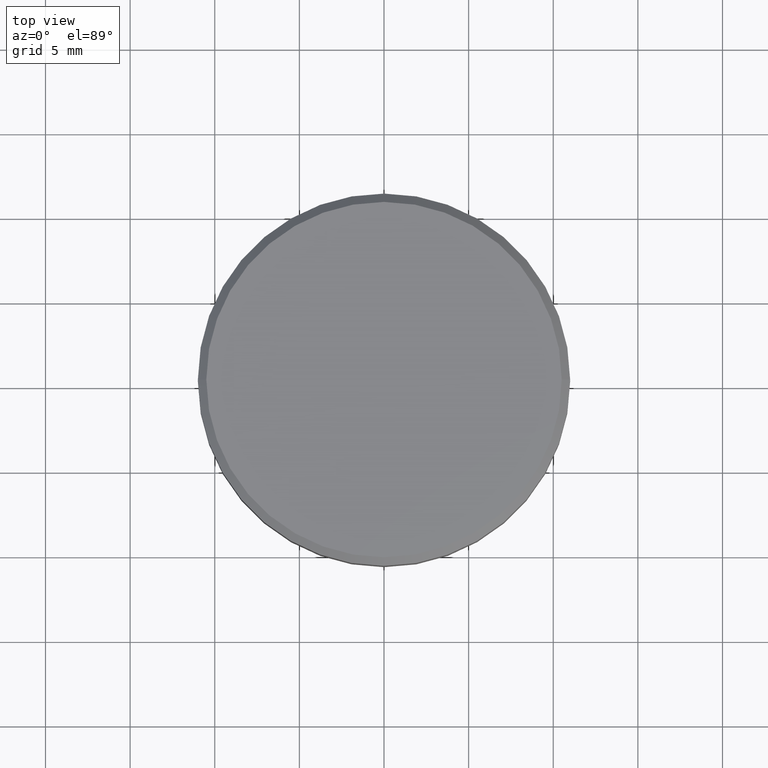
[diagram: clean part render]
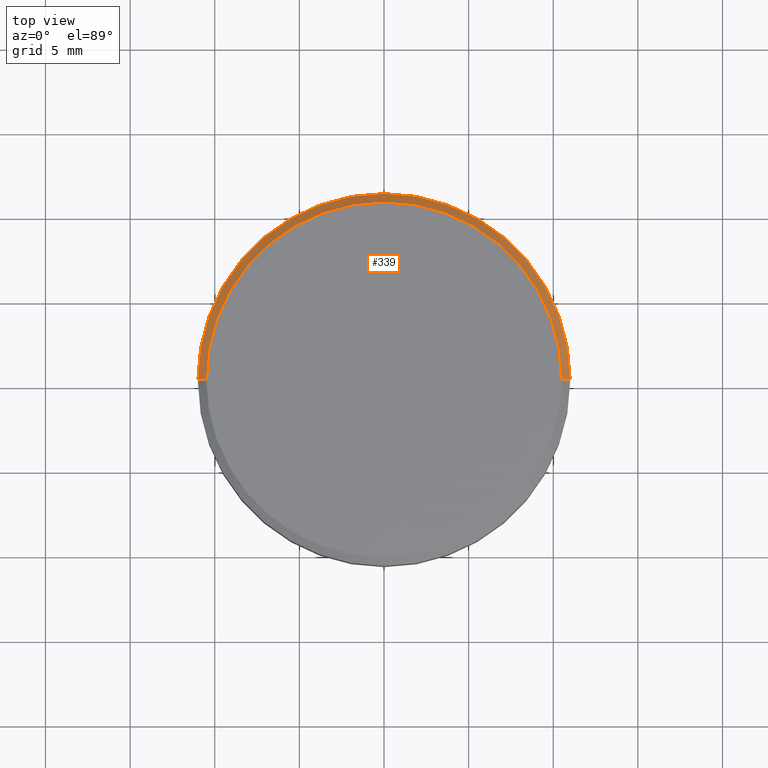
[diagram: same view with one face highlighted and labeled with its STEP entity id]
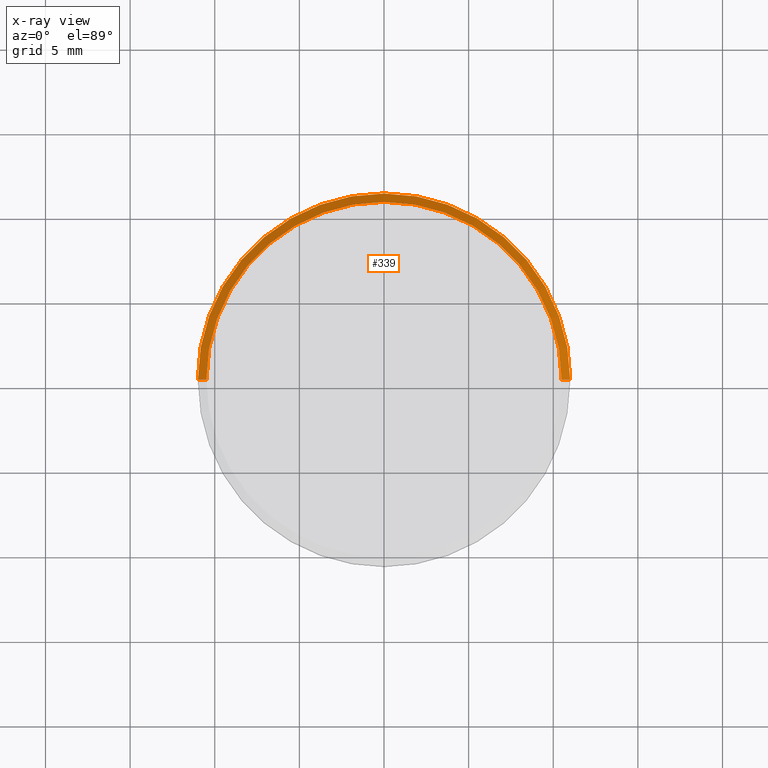
[diagram: x-ray of the same camera — body ghosted, the highlighted face saturated]
A machine part, top view. The second image highlights one B-rep face of the part: STEP entity #339.
The next image is the same camera in x-ray: the body ghosted, the highlighted face saturated — about 0% of this face is hidden behind the body in this view.
In plain terms, the highlighted conical surface has half-angle 45 deg.
Its self-contained STEP definition (entity closure, byte-faithful):
#35 = VERTEX_POINT ( 'NONE', #335 ) ;
#39 = DIRECTION ( 'NONE',  ( -0.7071067811865474617, 0.000000000000000000, -0.7071067811865474617 ) ) ;
#70 = CARTESIAN_POINT ( 'NONE',  ( -11.00000000000000000, 1.347111479062088405E-15, -0.5000000000000004441 ) ) ;
#74 = CARTESIAN_POINT ( 'NONE',  ( 11.00000000000000000, 0.000000000000000000, -0.5000000000000004441 ) ) ;
#75 = EDGE_CURVE ( 'NONE', #35, #108, #271, .T. ) ;
#82 = EDGE_LOOP ( 'NONE', ( #137, #123, #121, #380 ) ) ;
#103 = DIRECTION ( 'NONE',  ( 0.7071067811865474617, 8.659560562354932858E-17, -0.7071067811865474617 ) ) ;
#108 = VERTEX_POINT ( 'NONE', #74 ) ;
#112 = DIRECTION ( 'NONE',  ( -1.000000000000000000, 0.000000000000000000, 0.000000000000000000 ) ) ;
#121 = ORIENTED_EDGE ( 'NONE', *, *, #404, .F. ) ;
#123 = ORIENTED_EDGE ( 'NONE', *, *, #75, .T. ) ;
#137 = ORIENTED_EDGE ( 'NONE', *, *, #182, .F. ) ;
#140 = CARTESIAN_POINT ( 'NONE',  ( -10.49999999999999822, 0.000000000000000000, 0.000000000000000000 ) ) ;
#145 = CARTESIAN_POINT ( 'NONE',  ( 0.000000000000000000, 0.000000000000000000, 0.000000000000000000 ) ) ;
#158 = VERTEX_POINT ( 'NONE', #70 ) ;
#165 = CIRCLE ( 'NONE', #215, 10.49999999999999822 ) ;
#171 = EDGE_CURVE ( 'NONE', #219, #158, #216, .T. ) ;
#176 = CONICAL_SURFACE ( 'NONE', #325, 10.49999999999999822, 0.7853981633974482790 ) ;
#182 = EDGE_CURVE ( 'NONE', #35, #219, #165, .T. ) ;
#210 = DIRECTION ( 'NONE',  ( 1.000000000000000000, 0.000000000000000000, 0.000000000000000000 ) ) ;
#215 = AXIS2_PLACEMENT_3D ( 'NONE', #145, #239, #308 ) ;
#216 = LINE ( 'NONE', #345, #272 ) ;
#219 = VERTEX_POINT ( 'NONE', #140 ) ;
#233 = VECTOR ( 'NONE', #103, 1000.000000000000114 ) ;
#239 = DIRECTION ( 'NONE',  ( -0.000000000000000000, -0.000000000000000000, 1.000000000000000000 ) ) ;
#251 = DIRECTION ( 'NONE',  ( 0.000000000000000000, 0.000000000000000000, -1.000000000000000000 ) ) ;
#257 = AXIS2_PLACEMENT_3D ( 'NONE', #307, #341, #210 ) ;
#271 = LINE ( 'NONE', #402, #233 ) ;
#272 = VECTOR ( 'NONE', #39, 1000.000000000000114 ) ;
#286 = CIRCLE ( 'NONE', #257, 11.00000000000000000 ) ;
#290 = CARTESIAN_POINT ( 'NONE',  ( 0.000000000000000000, 0.000000000000000000, 0.000000000000000000 ) ) ;
#307 = CARTESIAN_POINT ( 'NONE',  ( 0.000000000000000000, 0.000000000000000000, -0.5000000000000004441 ) ) ;
#308 = DIRECTION ( 'NONE',  ( 1.000000000000000000, 0.000000000000000000, 0.000000000000000000 ) ) ;
#325 = AXIS2_PLACEMENT_3D ( 'NONE', #290, #251, #112 ) ;
#335 = CARTESIAN_POINT ( 'NONE',  ( 10.49999999999999822, 1.316495309083404420E-15, 0.000000000000000000 ) ) ;
#339 = ADVANCED_FACE ( 'NONE', ( #356 ), #176, .T. ) ;
#341 = DIRECTION ( 'NONE',  ( 0.000000000000000000, 0.000000000000000000, -1.000000000000000000 ) ) ;
#345 = CARTESIAN_POINT ( 'NONE',  ( -10.49999999999999822, 0.000000000000000000, 0.000000000000000000 ) ) ;
#356 = FACE_OUTER_BOUND ( 'NONE', #82, .T. ) ;
#380 = ORIENTED_EDGE ( 'NONE', *, *, #171, .F. ) ;
#402 = CARTESIAN_POINT ( 'NONE',  ( 10.49999999999999822, 1.285879139104720633E-15, 0.000000000000000000 ) ) ;
#404 = EDGE_CURVE ( 'NONE', #158, #108, #286, .T. ) ;